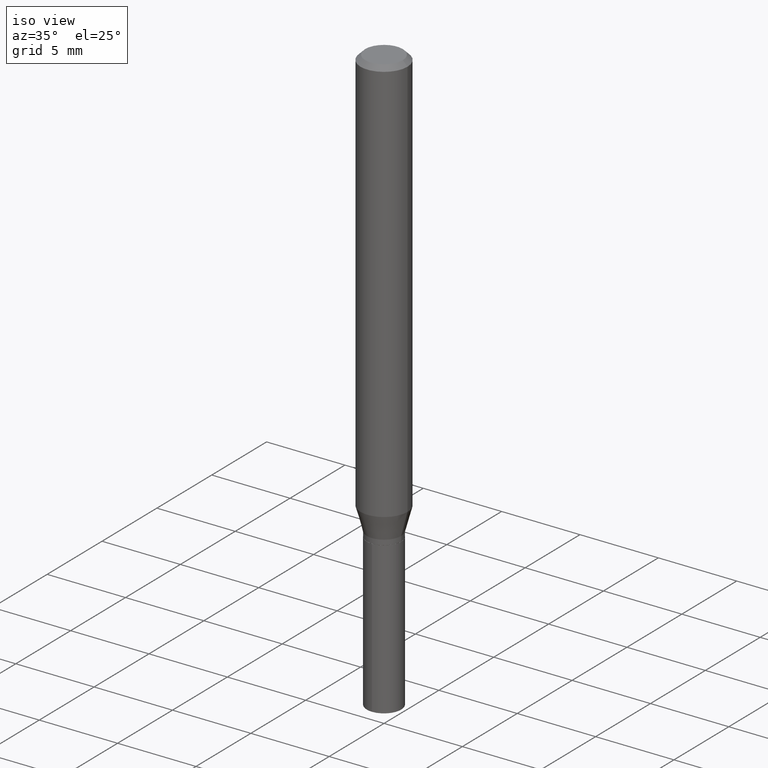
[diagram: clean part render]
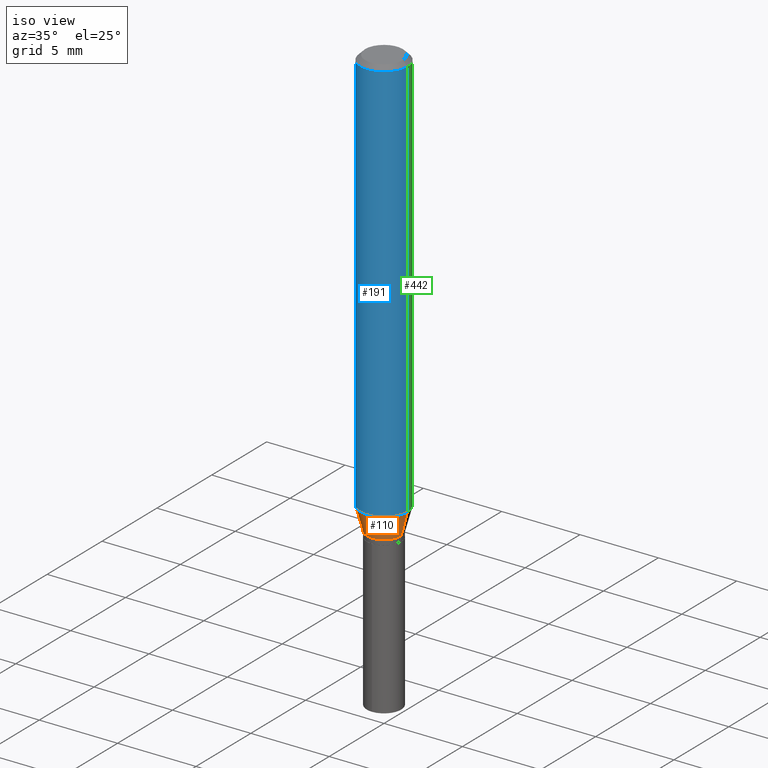
[diagram: same view with three faces highlighted in distinct colors, each labeled with its STEP entity id]
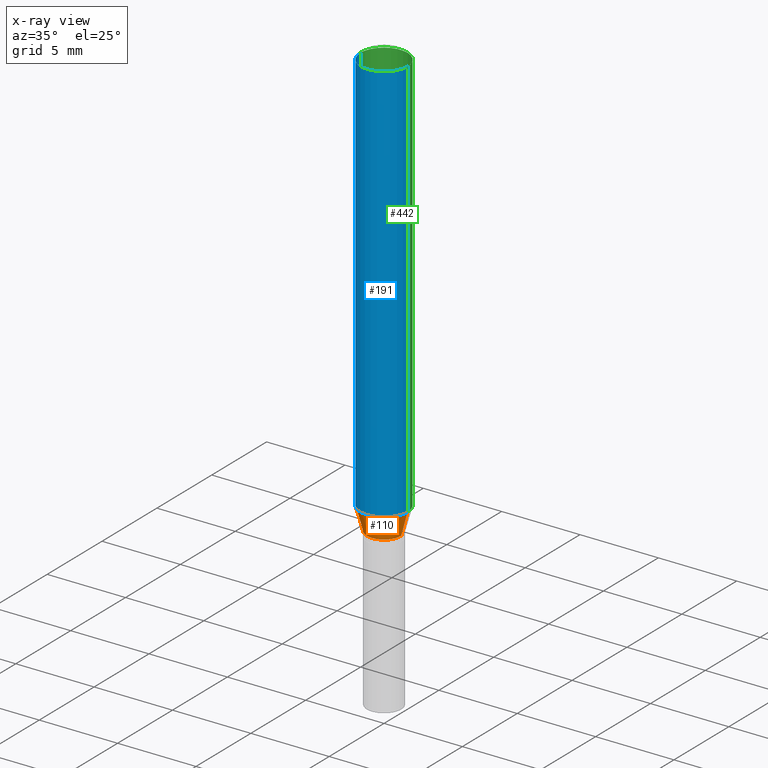
[diagram: x-ray of the same camera — body ghosted, the three highlighted faces saturated]
A machine part, iso view with three faces highlighted in distinct colors.
The next image is the same camera in x-ray (body ghosted, the three faces saturated) — at least one of them is partly hidden behind the body in this view.
Their STEP definitions:

[orange] entity #110 — the highlighted conical surface has half-angle 15 deg.
#3 = CONICAL_SURFACE ( 'NONE', #279, 0.04329999999999997046, 0.2617993877991501850 ) ;
#43 = EDGE_CURVE ( 'NONE', #44, #270, #250, .T. ) ;
#44 = VERTEX_POINT ( 'NONE', #298 ) ;
#46 = VERTEX_POINT ( 'NONE', #449 ) ;
#89 = EDGE_LOOP ( 'NONE', ( #428, #123, #468, #464 ) ) ;
#95 = DIRECTION ( 'NONE',  ( -2.445468806185136597E-29, 3.491481338843145583E-15, 1.000000000000000000 ) ) ;
#102 = CARTESIAN_POINT ( 'NONE',  ( 0.04329999999999997046, -4.078399351902676776E-15, -1.081499999999999906 ) ) ;
#108 = CARTESIAN_POINT ( 'NONE',  ( 2.501030346019352130E-29, -3.570808492392561101E-15, -1.022720199780789763 ) ) ;
#110 = ADVANCED_FACE ( 'NONE', ( #429 ), #3, .T. ) ;
#113 = DIRECTION ( 'NONE',  ( 1.000000000000000000, -6.982962677686265133E-15, 0.000000000000000000 ) ) ;
#121 = EDGE_CURVE ( 'NONE', #46, #44, #230, .T. ) ;
#123 = ORIENTED_EDGE ( 'NONE', *, *, #196, .T. ) ;
#126 = CARTESIAN_POINT ( 'NONE',  ( -0.04329999999999997046, -3.468372063374738686E-15, -1.081499999999999906 ) ) ;
#138 = LINE ( 'NONE', #102, #316 ) ;
#196 = EDGE_CURVE ( 'NONE', #46, #455, #405, .T. ) ;
#203 = CARTESIAN_POINT ( 'NONE',  ( 0.05905000000000013016, -3.983152438509936021E-15, -1.022720199780789763 ) ) ;
#212 = AXIS2_PLACEMENT_3D ( 'NONE', #317, #95, #359 ) ;
#230 = LINE ( 'NONE', #126, #376 ) ;
#250 = CIRCLE ( 'NONE', #342, 0.05905000000000013016 ) ;
#270 = VERTEX_POINT ( 'NONE', #203 ) ;
#279 = AXIS2_PLACEMENT_3D ( 'NONE', #427, #466, #461 ) ;
#298 = CARTESIAN_POINT ( 'NONE',  ( -0.05905000000000013016, -3.151233006926221213E-15, -1.022720199780789763 ) ) ;
#316 = VECTOR ( 'NONE', #443, 39.37007874015748143 ) ;
#317 = CARTESIAN_POINT ( 'NONE',  ( 2.644774513889225122E-29, -3.776037067958862103E-15, -1.081499999999999906 ) ) ;
#328 = EDGE_CURVE ( 'NONE', #455, #270, #138, .T. ) ;
#342 = AXIS2_PLACEMENT_3D ( 'NONE', #108, #457, #113 ) ;
#348 = DIRECTION ( 'NONE',  ( -0.2588190451025214611, 5.211531920934550253E-15, 0.9659258262890679791 ) ) ;
#359 = DIRECTION ( 'NONE',  ( 1.000000000000000000, -6.982962677686261189E-15, 0.000000000000000000 ) ) ;
#376 = VECTOR ( 'NONE', #348, 39.37007874015748143 ) ;
#405 = CIRCLE ( 'NONE', #212, 0.04329999999999997046 ) ;
#427 = CARTESIAN_POINT ( 'NONE',  ( 2.644774513889225122E-29, -3.776037067958862103E-15, -1.081499999999999906 ) ) ;
#428 = ORIENTED_EDGE ( 'NONE', *, *, #121, .F. ) ;
#429 = FACE_OUTER_BOUND ( 'NONE', #89, .T. ) ;
#443 = DIRECTION ( 'NONE',  ( 0.2588190451025214611, 1.565188264969620982E-15, 0.9659258262890679791 ) ) ;
#449 = CARTESIAN_POINT ( 'NONE',  ( -0.04329999999999997046, -3.490193821742507875E-15, -1.081499999999999906 ) ) ;
#455 = VERTEX_POINT ( 'NONE', #489 ) ;
#457 = DIRECTION ( 'NONE',  ( -2.445468806185136597E-29, 3.491481338843145583E-15, 1.000000000000000000 ) ) ;
#461 = DIRECTION ( 'NONE',  ( 1.000000000000000000, -6.982962677686261189E-15, 0.000000000000000000 ) ) ;
#464 = ORIENTED_EDGE ( 'NONE', *, *, #43, .F. ) ;
#466 = DIRECTION ( 'NONE',  ( -2.445468806185136597E-29, 3.491481338843145583E-15, 1.000000000000000000 ) ) ;
#468 = ORIENTED_EDGE ( 'NONE', *, *, #328, .T. ) ;
#489 = CARTESIAN_POINT ( 'NONE',  ( 0.04329999999999997046, -4.078399351902676776E-15, -1.081499999999999906 ) ) ;

[blue] entity #191 — the highlighted cylindrical surface (edge-blend (fillet) strip) has radius 1.4999 mm, axis along (-0, 0, 1).
#2 = VERTEX_POINT ( 'NONE', #82 ) ;
#18 = VECTOR ( 'NONE', #79, 39.37007874015748143 ) ;
#19 = CARTESIAN_POINT ( 'NONE',  ( -0.05904999999999999832, -1.386445958035808936E-15, -0.01181000000000007044 ) ) ;
#21 = DIRECTION ( 'NONE',  ( -2.445468806185136877E-29, 3.491481338843145188E-15, 1.000000000000000000 ) ) ;
#42 = DIRECTION ( 'NONE',  ( -2.445468806185136597E-29, 3.491481338843145583E-15, 1.000000000000000000 ) ) ;
#43 = EDGE_CURVE ( 'NONE', #44, #270, #250, .T. ) ;
#44 = VERTEX_POINT ( 'NONE', #298 ) ;
#47 = FACE_OUTER_BOUND ( 'NONE', #458, .T. ) ;
#65 = CARTESIAN_POINT ( 'NONE',  ( -0.05905000000000006771, 4.195754854663396409E-16, -2.904631170795525045E-30 ) ) ;
#71 = EDGE_CURVE ( 'NONE', #270, #2, #293, .T. ) ;
#79 = DIRECTION ( 'NONE',  ( -2.445468806185136877E-29, 3.491481338843145188E-15, 1.000000000000000000 ) ) ;
#82 = CARTESIAN_POINT ( 'NONE',  ( 0.05904999999999999832, -4.535783407291118600E-16, -0.01181000000000007044 ) ) ;
#99 = EDGE_CURVE ( 'NONE', #289, #2, #106, .T. ) ;
#105 = VECTOR ( 'NONE', #21, 39.37007874015748143 ) ;
#106 = CIRCLE ( 'NONE', #431, 0.05904999999999999832 ) ;
#108 = CARTESIAN_POINT ( 'NONE',  ( 2.501030346019352130E-29, -3.570808492392561101E-15, -1.022720199780789763 ) ) ;
#113 = DIRECTION ( 'NONE',  ( 1.000000000000000000, -6.982962677686265133E-15, 0.000000000000000000 ) ) ;
#120 = ORIENTED_EDGE ( 'NONE', *, *, #361, .F. ) ;
#129 = DIRECTION ( 'NONE',  ( 1.000000000000000000, -6.982962677686266711E-15, 4.876176775795936353E-29 ) ) ;
#187 = DIRECTION ( 'NONE',  ( 1.000000000000000000, -6.982962677686266711E-15, 0.000000000000000000 ) ) ;
#191 = ADVANCED_FACE ( 'NONE', ( #47 ), #319, .T. ) ;
#203 = CARTESIAN_POINT ( 'NONE',  ( 0.05905000000000013016, -3.983152438509936021E-15, -1.022720199780789763 ) ) ;
#209 = LINE ( 'NONE', #65, #105 ) ;
#250 = CIRCLE ( 'NONE', #342, 0.05905000000000013016 ) ;
#263 = DIRECTION ( 'NONE',  ( -2.445468806185136597E-29, 3.491481338843145583E-15, 1.000000000000000000 ) ) ;
#270 = VERTEX_POINT ( 'NONE', #203 ) ;
#289 = VERTEX_POINT ( 'NONE', #19 ) ;
#293 = LINE ( 'NONE', #334, #18 ) ;
#298 = CARTESIAN_POINT ( 'NONE',  ( -0.05905000000000013016, -3.151233006926221213E-15, -1.022720199780789763 ) ) ;
#309 = ORIENTED_EDGE ( 'NONE', *, *, #43, .T. ) ;
#319 = CYLINDRICAL_SURFACE ( 'NONE', #355, 0.05905000000000006771 ) ;
#320 = CARTESIAN_POINT ( 'NONE',  ( 0.000000000000000000, 0.000000000000000000, 0.000000000000000000 ) ) ;
#334 = CARTESIAN_POINT ( 'NONE',  ( 0.05905000000000006771, -4.123439461173745257E-16, 2.879382386107503723E-30 ) ) ;
#342 = AXIS2_PLACEMENT_3D ( 'NONE', #108, #457, #113 ) ;
#345 = ORIENTED_EDGE ( 'NONE', *, *, #71, .T. ) ;
#352 = CARTESIAN_POINT ( 'NONE',  ( 2.888098660104663766E-31, -4.123439461173779647E-17, -0.01181000000000007044 ) ) ;
#355 = AXIS2_PLACEMENT_3D ( 'NONE', #320, #263, #129 ) ;
#361 = EDGE_CURVE ( 'NONE', #44, #289, #209, .T. ) ;
#380 = ORIENTED_EDGE ( 'NONE', *, *, #99, .F. ) ;
#431 = AXIS2_PLACEMENT_3D ( 'NONE', #352, #42, #187 ) ;
#457 = DIRECTION ( 'NONE',  ( -2.445468806185136597E-29, 3.491481338843145583E-15, 1.000000000000000000 ) ) ;
#458 = EDGE_LOOP ( 'NONE', ( #120, #309, #345, #380 ) ) ;

[green] entity #442 — the highlighted cylindrical surface (edge-blend (fillet) strip) has radius 1.4999 mm, axis along (-0, 0, 1).
#2 = VERTEX_POINT ( 'NONE', #82 ) ;
#18 = VECTOR ( 'NONE', #79, 39.37007874015748143 ) ;
#19 = CARTESIAN_POINT ( 'NONE',  ( -0.05904999999999999832, -1.386445958035808936E-15, -0.01181000000000007044 ) ) ;
#21 = DIRECTION ( 'NONE',  ( -2.445468806185136877E-29, 3.491481338843145188E-15, 1.000000000000000000 ) ) ;
#23 = CARTESIAN_POINT ( 'NONE',  ( 2.888098660104663766E-31, -4.123439461173779647E-17, -0.01181000000000007044 ) ) ;
#36 = DIRECTION ( 'NONE',  ( 1.000000000000000000, -6.982962677686266711E-15, 4.876176775795936353E-29 ) ) ;
#44 = VERTEX_POINT ( 'NONE', #298 ) ;
#51 = AXIS2_PLACEMENT_3D ( 'NONE', #23, #325, #476 ) ;
#58 = FACE_OUTER_BOUND ( 'NONE', #280, .T. ) ;
#65 = CARTESIAN_POINT ( 'NONE',  ( -0.05905000000000006771, 4.195754854663396409E-16, -2.904631170795525045E-30 ) ) ;
#66 = EDGE_CURVE ( 'NONE', #270, #44, #238, .T. ) ;
#71 = EDGE_CURVE ( 'NONE', #270, #2, #293, .T. ) ;
#79 = DIRECTION ( 'NONE',  ( -2.445468806185136877E-29, 3.491481338843145188E-15, 1.000000000000000000 ) ) ;
#82 = CARTESIAN_POINT ( 'NONE',  ( 0.05904999999999999832, -4.535783407291118600E-16, -0.01181000000000007044 ) ) ;
#105 = VECTOR ( 'NONE', #21, 39.37007874015748143 ) ;
#119 = DIRECTION ( 'NONE',  ( 1.000000000000000000, -6.982962677686265133E-15, 0.000000000000000000 ) ) ;
#181 = CARTESIAN_POINT ( 'NONE',  ( 0.000000000000000000, 0.000000000000000000, 0.000000000000000000 ) ) ;
#194 = ORIENTED_EDGE ( 'NONE', *, *, #281, .F. ) ;
#203 = CARTESIAN_POINT ( 'NONE',  ( 0.05905000000000013016, -3.983152438509936021E-15, -1.022720199780789763 ) ) ;
#209 = LINE ( 'NONE', #65, #105 ) ;
#232 = ORIENTED_EDGE ( 'NONE', *, *, #71, .F. ) ;
#237 = AXIS2_PLACEMENT_3D ( 'NONE', #181, #335, #36 ) ;
#238 = CIRCLE ( 'NONE', #479, 0.05905000000000013016 ) ;
#253 = DIRECTION ( 'NONE',  ( -2.445468806185136597E-29, 3.491481338843145583E-15, 1.000000000000000000 ) ) ;
#261 = ORIENTED_EDGE ( 'NONE', *, *, #361, .T. ) ;
#270 = VERTEX_POINT ( 'NONE', #203 ) ;
#280 = EDGE_LOOP ( 'NONE', ( #387, #261, #194, #232 ) ) ;
#281 = EDGE_CURVE ( 'NONE', #2, #289, #471, .T. ) ;
#289 = VERTEX_POINT ( 'NONE', #19 ) ;
#293 = LINE ( 'NONE', #334, #18 ) ;
#298 = CARTESIAN_POINT ( 'NONE',  ( -0.05905000000000013016, -3.151233006926221213E-15, -1.022720199780789763 ) ) ;
#325 = DIRECTION ( 'NONE',  ( -2.445468806185136597E-29, 3.491481338843145583E-15, 1.000000000000000000 ) ) ;
#334 = CARTESIAN_POINT ( 'NONE',  ( 0.05905000000000006771, -4.123439461173745257E-16, 2.879382386107503723E-30 ) ) ;
#335 = DIRECTION ( 'NONE',  ( -2.445468806185136597E-29, 3.491481338843145583E-15, 1.000000000000000000 ) ) ;
#338 = CARTESIAN_POINT ( 'NONE',  ( 2.501030346019352130E-29, -3.570808492392561101E-15, -1.022720199780789763 ) ) ;
#361 = EDGE_CURVE ( 'NONE', #44, #289, #209, .T. ) ;
#387 = ORIENTED_EDGE ( 'NONE', *, *, #66, .T. ) ;
#409 = CYLINDRICAL_SURFACE ( 'NONE', #237, 0.05905000000000006771 ) ;
#442 = ADVANCED_FACE ( 'NONE', ( #58 ), #409, .T. ) ;
#471 = CIRCLE ( 'NONE', #51, 0.05904999999999999832 ) ;
#476 = DIRECTION ( 'NONE',  ( 1.000000000000000000, -6.982962677686266711E-15, 0.000000000000000000 ) ) ;
#479 = AXIS2_PLACEMENT_3D ( 'NONE', #338, #253, #119 ) ;